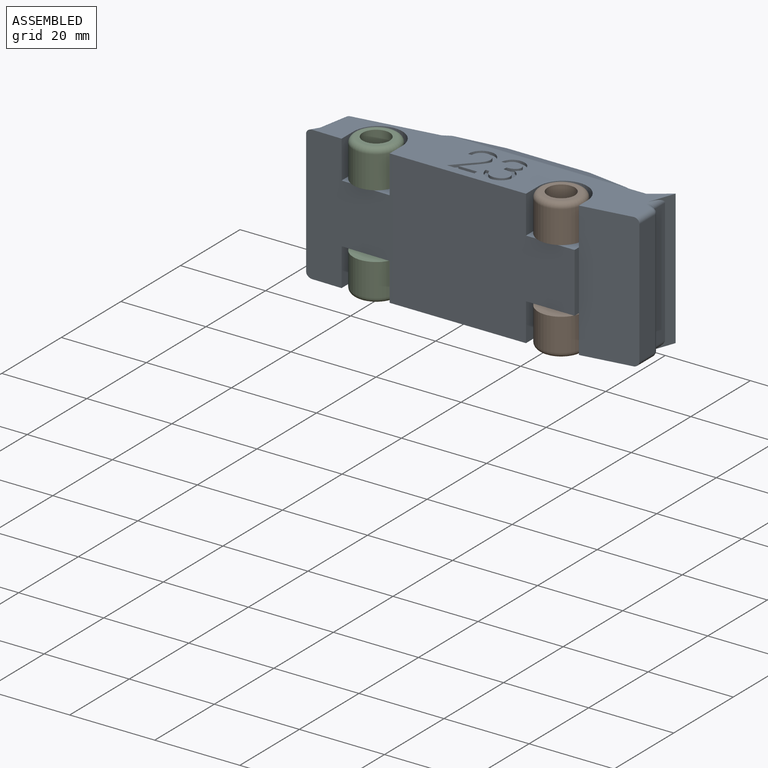
[diagram: assembled view]
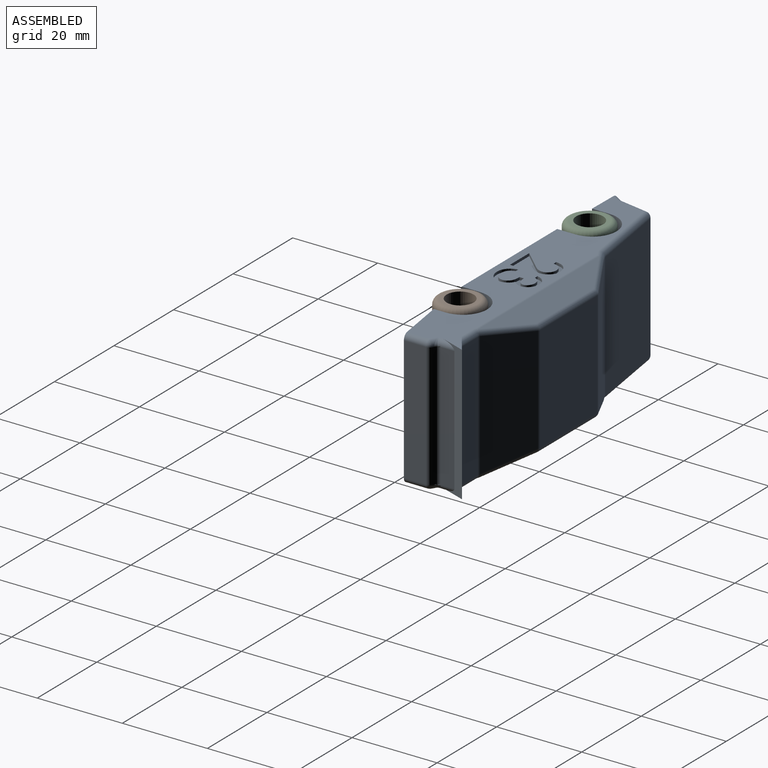
[diagram: assembled view, second angle]
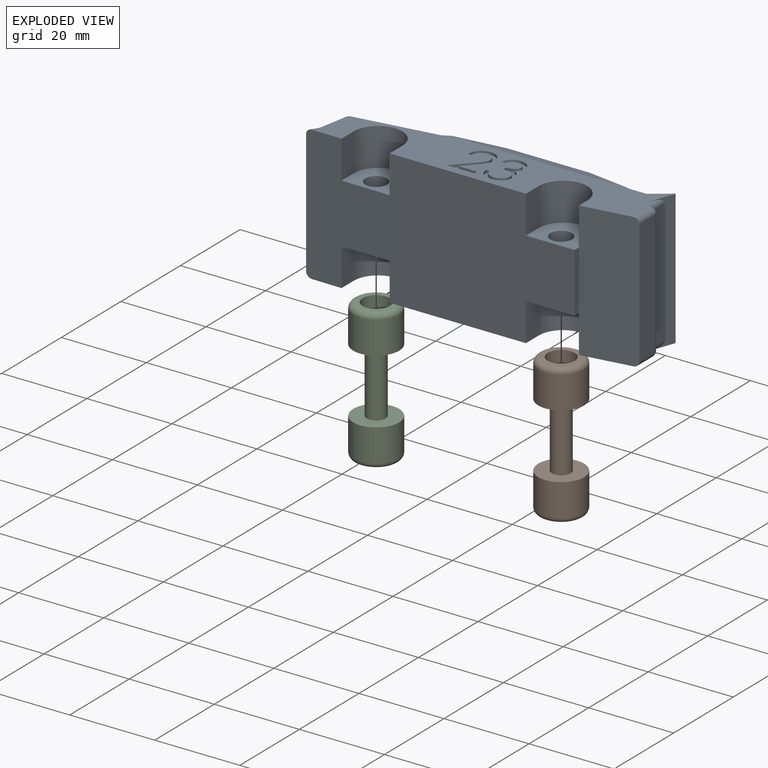
[diagram: exploded view]
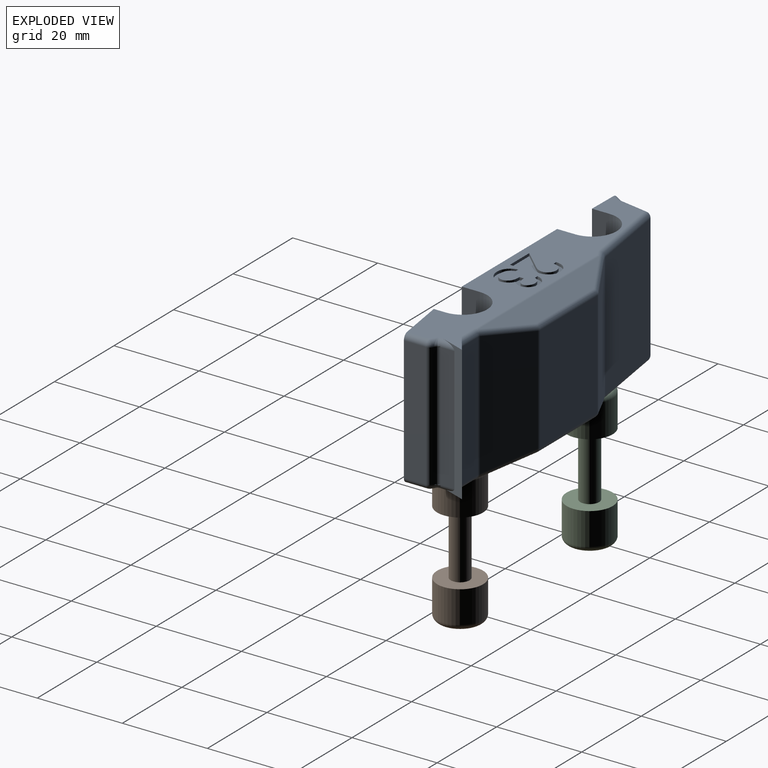
[diagram: exploded view, second angle]
ASSEMBLY  parts=3 mates=2
PART A: 150 faces, bbox 76.2x19.9x31.8 mm
  f0: plane 74.03x16.57mm, normal (0,0,-1), area 625.1mm2, adj f10,f11,f12,f16,f17,f29,f30,f31
  f1: plane 74.03x16.57mm, normal (0,0,1), area 625.1mm2, adj f10,f11,f12,f16,f17,f23,f24,f25
  f2: plane 11.43x9.98mm, normal (0,0,1), area 78.9mm2, adj f10,f23,f24,f25,f36
  f3: plane 11.43x9.98mm, normal (0,0,-1), area 78.9mm2, adj f10,f32,f33,f34,f36
  f4: plane 11.43x9.99mm, normal (0,0,1), area 79.9mm2, adj f11,f26,f27,f28,f35,f149
  f5: plane 11.43x9.99mm, normal (0,0,-1), area 79.9mm2, adj f11,f29,f30,f31,f35,f149
  f6: plane 29.21x5.47mm, normal (0,1,0), area 159.9mm2, adj f17,f128,f130,f135
  f7: plane 29.22x12.16mm, normal (0.39,0.92,0), area 357.7mm2, adj f119,f128,f131,f132,f134,f136
  f8: plane 24.97x19.28mm, normal (0,1,0), area 481.3mm2, adj f117,f119,f121,f122
  f9: plane 29.21x10.49mm, normal (-0.49,0.87,0), area 328.8mm2, adj f111,f115,f118,f122,f124,f126
  f10: plane 31.75x20.56mm, normal (-0.01,-1,0), area 448.9mm2, adj f0,f1,f2,f3,f11,f20,f23,f24
  f11: plane 42.78x31.75mm, normal (0,-1,0), area 1155.1mm2, adj f0,f1,f4,f5,f10,f26,f29,f149
  f12: plane 31.75x12.86mm, normal (0.15,-0.99,0), area 412.3mm2, adj f0,f1,f13,f27,f30,f139,f142,f149
  f13: plane 29.21x5.18mm, normal (1,0,0), area 151.3mm2, adj f12,f139,f142,f144
  f14: plane 29.21x0.33mm, normal (0.53,0.85,0), area 11.5mm2, adj f138,f141,f144,f147
  f15: plane 29.21x3.25mm, normal (1,0,0), area 95mm2, adj f16,f137,f140,f147
  f16: plane 31.75x5.91mm, normal (0.94,-0.34,0), area 81.7mm2, adj f0,f1,f15,f17,f137,f140
  f17: plane 31.75x5.09mm, normal (-0.58,0.81,0), area 130.2mm2, adj f0,f1,f6,f16,f130,f135
  f18: plane 29.21x19.1mm, normal (-0.15,0.99,0), area 564.5mm2, adj f99,f103,f104,f111
  f19: plane 29.21x6.68mm, normal (-0.98,0.18,0), area 198.4mm2, adj f102,f103,f107,f108
  f20: plane 29.21x1.98mm, normal (-0.85,0.53,0), area 67.8mm2, adj f10,f101,f107,f110
  f21: plane 40.58x5.13mm, normal (0,0.38,-0.92), area 166mm2, adj f113,f121,f124,f134
  f22: plane 40.58x5.13mm, normal (0,0.38,0.92), area 166mm2, adj f112,f117,f118,f131
  f23: plane 8.89x4.27mm, normal (-1,0,0), area 38mm2, adj f1,f2,f10,f25
  f24: plane 8.89x4.1mm, normal (1,0,0), area 36.5mm2, adj f1,f2,f10,f25
  f25: cylinder r=5.71mm len=11.43mm, axis (0,0,1), area 159.6mm2, adj f1,f2,f23,f24
  f26: plane 8.89x4.28mm, normal (1,0,0), area 38mm2, adj f1,f4,f11,f28
  f27: plane 8.89x2.85mm, normal (-1,0,0), area 25.3mm2, adj f1,f4,f12,f28
  f28: cylinder r=5.71mm len=11.43mm, axis (0,0,1), area 159.6mm2, adj f1,f4,f26,f27
  f29: plane 8.89x4.28mm, normal (1,0,0), area 38mm2, adj f0,f5,f11,f31
  f30: plane 8.89x2.85mm, normal (-1,0,0), area 25.3mm2, adj f0,f5,f12,f31
  f31: cylinder r=5.71mm len=11.43mm, axis (0,0,-1), area 159.6mm2, adj f0,f5,f29,f30
  f32: plane 8.89x4.1mm, normal (1,0,0), area 36.5mm2, adj f0,f3,f10,f34
  f33: plane 8.89x4.27mm, normal (-1,0,0), area 38mm2, adj f0,f3,f10,f34
  f34: cylinder r=5.71mm len=11.43mm, axis (0,0,-1), area 159.6mm2, adj f0,f3,f32,f33
  f35: cylinder r=2.54mm len=13.97mm, axis (0,0,1), area 223mm2, adj f4,f5
  f36: cylinder r=2.54mm len=13.97mm, axis (0,0,1), area 223mm2, adj f2,f3
  f37: extruded ~2.21x2.2mm, area 2.2mm2, adj f1,f38,f48,f49
  f38: plane 0.86x0.64mm, normal (0,1,0), area 0.5mm2, adj f1,f37,f39,f49
  f39: extruded ~3.18x3.11mm, area 3.1mm2, adj f1,f38,f40,f49
  f40: extruded ~2.88x2.83mm, area 2.9mm2, adj f1,f39,f41,f49
  f41: extruded ~3.42x1.93mm, area 2.6mm2, adj f1,f40,f42,f49
  f42: plane 2.54x2.38mm, normal (-0.73,0.68,0), area 2.2mm2, adj f1,f41,f43,f49
  f43: plane 4.43x0.64mm, normal (0,-1,0), area 2.8mm2, adj f1,f42,f44,f49
  f44: plane 0.98x0.64mm, normal (-1,0,0), area 0.6mm2, adj f1,f43,f45,f49
  f45: plane 6.47x0.64mm, normal (0,1,0), area 4.1mm2, adj f1,f44,f46,f49
  f46: plane 3.94x3.69mm, normal (0.73,-0.68,0), area 3.4mm2, adj f1,f45,f47,f49
  f47: extruded ~2.92x1.8mm, area 2.2mm2, adj f1,f46,f48,f49
  f48: extruded ~2.07x1.93mm, area 2mm2, adj f1,f37,f47,f49
  f49: plane 9.77x6.47mm, normal (0,0,1), area 19.5mm2, adj f37,f38,f39,f40,f41,f42,f43,f44
  f50: extruded ~1.99x1.47mm, area 1.7mm2, adj f1,f51,f66,f67
  f51: plane 0.86x0.64mm, normal (0,1,0), area 0.5mm2, adj f1,f50,f52,f67
  f52: extruded ~2.84x2.44mm, area 2.6mm2, adj f1,f51,f53,f67
  f53: extruded ~2.78x2.47mm, area 2.6mm2, adj f1,f52,f54,f67
  f54: extruded ~1.96x1.11mm, area 1.5mm2, adj f1,f53,f55,f67
  f55: extruded ~1.03x0.81mm, area 0.8mm2, adj f1,f54,f56,f67
  f56: extruded ~1.69x0.64mm, area 1.2mm2, adj f1,f55,f57,f67
  f57: extruded ~3.3x3.07mm, area 3.2mm2, adj f1,f56,f58,f67
  f58: extruded ~3.18x2.81mm, area 3mm2, adj f1,f57,f59,f67
  f59: plane 0.86x0.64mm, normal (0,-1,0), area 0.5mm2, adj f1,f58,f60,f67
  f60: extruded ~1.32x0.75mm, area 1mm2, adj f1,f59,f61,f67
  f61: extruded ~1.59x0.64mm, area 1.1mm2, adj f1,f60,f62,f67
  f62: extruded ~2.43x2.02mm, area 2.2mm2, adj f1,f61,f63,f67
  f63: extruded ~2.93x2.02mm, area 2.5mm2, adj f1,f62,f64,f67
  f64: plane 0.98x0.64mm, normal (1,0,0), area 0.6mm2, adj f1,f63,f65,f67
  f65: extruded ~2.44x1.56mm, area 2mm2, adj f1,f64,f66,f67
  f66: extruded ~1.92x1.49mm, area 1.7mm2, adj f1,f50,f65,f67
  f67: plane 10.01x6.47mm, normal (0,0,1), area 20.4mm2, adj f50,f51,f52,f53,f54,f55,f56,f57
  f68: extruded ~2.21x2.2mm, area 2.2mm2, adj f0,f69,f79,f80
  f69: plane 0.86x0.64mm, normal (0,1,0), area 0.5mm2, adj f0,f68,f70,f80
  f70: extruded ~3.18x3.11mm, area 3.1mm2, adj f0,f69,f71,f80
  f71: extruded ~2.88x2.83mm, area 2.9mm2, adj f0,f70,f72,f80
  f72: extruded ~3.42x1.93mm, area 2.6mm2, adj f0,f71,f73,f80
  f73: plane 2.54x2.38mm, normal (0.73,0.68,0), area 2.2mm2, adj f0,f72,f74,f80
  f74: plane 4.43x0.64mm, normal (0,-1,0), area 2.8mm2, adj f0,f73,f75,f80
  f75: plane 0.98x0.64mm, normal (1,0,0), area 0.6mm2, adj f0,f74,f76,f80
  f76: plane 6.47x0.64mm, normal (0,1,0), area 4.1mm2, adj f0,f75,f77,f80
  f77: plane 3.94x3.69mm, normal (-0.73,-0.68,0), area 3.4mm2, adj f0,f76,f78,f80
  f78: extruded ~2.92x1.8mm, area 2.2mm2, adj f0,f77,f79,f80
  f79: extruded ~2.07x1.93mm, area 2mm2, adj f0,f68,f78,f80
  f80: plane 9.77x6.47mm, normal (0,0,-1), area 19.5mm2, adj f68,f69,f70,f71,f72,f73,f74,f75
  f81: extruded ~1.99x1.47mm, area 1.7mm2, adj f0,f82,f97,f98
  f82: plane 0.86x0.64mm, normal (0,1,0), area 0.5mm2, adj f0,f81,f83,f98
  f83: extruded ~2.84x2.44mm, area 2.6mm2, adj f0,f82,f84,f98
  f84: extruded ~2.78x2.47mm, area 2.6mm2, adj f0,f83,f85,f98
  f85: extruded ~1.96x1.11mm, area 1.5mm2, adj f0,f84,f86,f98
  f86: extruded ~1.03x0.81mm, area 0.8mm2, adj f0,f85,f87,f98
  f87: extruded ~1.69x0.64mm, area 1.2mm2, adj f0,f86,f88,f98
  f88: extruded ~3.3x3.07mm, area 3.2mm2, adj f0,f87,f89,f98
  f89: extruded ~3.18x2.81mm, area 3mm2, adj f0,f88,f90,f98
  f90: plane 0.86x0.64mm, normal (0,-1,0), area 0.5mm2, adj f0,f89,f91,f98
  f91: extruded ~1.32x0.75mm, area 1mm2, adj f0,f90,f92,f98
  f92: extruded ~1.59x0.64mm, area 1.1mm2, adj f0,f91,f93,f98
  f93: extruded ~2.43x2.02mm, area 2.2mm2, adj f0,f92,f94,f98
  f94: extruded ~2.93x2.02mm, area 2.5mm2, adj f0,f93,f95,f98
  f95: plane 0.98x0.64mm, normal (-1,0,0), area 0.6mm2, adj f0,f94,f96,f98
  f96: extruded ~2.44x1.56mm, area 2mm2, adj f0,f95,f97,f98
  f97: extruded ~1.92x1.49mm, area 1.7mm2, adj f0,f81,f96,f98
  f98: plane 10.01x6.47mm, normal (0,0,-1), area 20.4mm2, adj f81,f82,f83,f84,f85,f86,f87,f88
  f99: cylinder r=1.27mm len=19.29mm, axis (-0.99,-0.15,0), area 38.5mm2, adj f0,f18,f100,f127
  f100: sphere r=1.27mm, area 2mm2, adj f99,f102,f103
  f101: cylinder r=1.27mm len=2.64mm, axis (-0.53,-0.85,0), area 4.1mm2, adj f0,f10,f20,f105
  f102: cylinder r=1.27mm len=6.91mm, axis (-0.18,-0.98,0), area 13.5mm2, adj f0,f19,f100,f105
  f103: cylinder r=1.27mm len=29.21mm, axis (0,0,-1), area 45.9mm2, adj f18,f19,f100,f106
  f104: cylinder r=1.27mm len=19.29mm, axis (0.99,0.15,0), area 38.5mm2, adj f1,f18,f106,f114
  f105: torus R=2.54mm, axis (0,0,1), area 1.3mm2, adj f0,f101,f102,f107
  f106: sphere r=1.27mm, area 2mm2, adj f103,f104,f108
  f107: cylinder r=1.27mm len=29.21mm, axis (0,0,1), area 13.9mm2, adj f19,f20,f105,f109
  f108: cylinder r=1.27mm len=6.91mm, axis (0.18,0.98,0), area 13.5mm2, adj f1,f19,f106,f109
  f109: torus R=2.54mm, axis (0,0,1), area 1.3mm2, adj f1,f107,f108,f110
  f110: cylinder r=1.27mm len=2.64mm, axis (0.53,0.85,0), area 4.1mm2, adj f1,f10,f20,f109
  f111: cylinder r=1.27mm len=29.21mm, axis (0,0,1), area 13.3mm2, adj f9,f18,f114,f127
  f112: cylinder r=1.27mm len=40.68mm, axis (-1,0,0), area 20.2mm2, adj f1,f22,f116,f131,f132
  f113: cylinder r=1.27mm len=40.68mm, axis (1,0,0), area 20.2mm2, adj f0,f21,f125,f134,f136
  f114: torus R=2.54mm, axis (0,0,1), area 1.2mm2, adj f1,f104,f111,f115
  f115: cylinder r=1.27mm len=1.95mm, axis (0.87,0.49,0), area 3mm2, adj f1,f9,f114,f116
  f116: sphere r=1.27mm, area 0.3mm2, adj f112,f115,f118
  f117: cylinder r=1.27mm len=19.28mm, axis (1,0,0), area 28.9mm2, adj f8,f22,f120,f129
  f118: cylinder r=1.27mm len=9.78mm, axis (0.86,0.48,-0.2), area 16.7mm2, adj f9,f22,f116,f120
  f119: cylinder r=1.27mm len=24.97mm, axis (0,0,-1), area 12.7mm2, adj f7,f8,f129,f133
  f120: sphere r=1.27mm, area 0.6mm2, adj f117,f118,f122
  f121: cylinder r=1.27mm len=19.28mm, axis (1,0,0), area 28.9mm2, adj f8,f21,f123,f133
  f122: cylinder r=1.27mm len=24.97mm, axis (0,0,-1), area 16.2mm2, adj f8,f9,f120,f123
  f123: sphere r=1.27mm, area 0.6mm2, adj f121,f122,f124
  f124: cylinder r=1.27mm len=9.78mm, axis (-0.86,-0.48,-0.2), area 16.7mm2, adj f9,f21,f123,f125
  f125: sphere r=1.27mm, area 0.3mm2, adj f113,f124,f126
  f126: cylinder r=1.27mm len=1.95mm, axis (0.87,0.49,0), area 3mm2, adj f0,f9,f125,f127
  f127: torus R=2.54mm, axis (0,0,1), area 1.2mm2, adj f0,f99,f111,f126
  f128: cylinder r=1.27mm len=29.21mm, axis (0,0,1), area 14.8mm2, adj f6,f7,f132,f136
  f129: sphere r=1.27mm, area 0.4mm2, adj f117,f119,f131
  f130: cylinder r=1.27mm len=5.47mm, axis (1,0,0), area 9.6mm2, adj f1,f6,f17,f132
  f131: cylinder r=1.27mm len=12.73mm, axis (0.91,-0.38,0.16), area 20.6mm2, adj f7,f22,f112,f129,f132
  f132: torus R=2.54mm, axis (0,0,1), area 1.5mm2, adj f1,f7,f112,f128,f130,f131
  f133: sphere r=1.27mm, area 0.4mm2, adj f119,f121,f134
  f134: cylinder r=1.27mm len=12.73mm, axis (-0.91,0.38,0.16), area 20.6mm2, adj f7,f21,f113,f133,f136
  f135: cylinder r=1.27mm len=5.47mm, axis (-1,0,0), area 9.6mm2, adj f0,f6,f17,f136
  f136: torus R=2.54mm, axis (0,0,1), area 1.5mm2, adj f0,f7,f113,f128,f134,f135
  f137: cylinder r=1.27mm len=4.67mm, axis (0,-1,0), area 4.9mm2, adj f1,f15,f16,f148
  f138: cylinder r=1.27mm len=2.21mm, axis (0.85,-0.53,0), area 1.8mm2, adj f1,f14,f145,f148
  f139: cylinder r=1.27mm len=5.38mm, axis (0,-1,0), area 10.5mm2, adj f1,f12,f13,f145
  f140: cylinder r=1.27mm len=4.67mm, axis (0,1,0), area 4.9mm2, adj f0,f15,f16,f146
  f141: cylinder r=1.27mm len=2.21mm, axis (-0.85,0.53,0), area 1.8mm2, adj f0,f14,f143,f146
  f142: cylinder r=1.27mm len=5.38mm, axis (0,1,0), area 10.5mm2, adj f0,f12,f13,f143
  f143: sphere r=1.27mm, area 1.6mm2, adj f141,f142,f144
  f144: cylinder r=1.27mm len=29.21mm, axis (0,0,-1), area 37.7mm2, adj f13,f14,f143,f145
  f145: sphere r=1.27mm, area 1.6mm2, adj f138,f139,f144
  f146: bspline ~1.87x1.44mm, area 1.7mm2, adj f140,f141,f147
  f147: cylinder r=1.27mm len=29.21mm, axis (0,0,1), area 37.7mm2, adj f14,f15,f146,f148
  f148: bspline ~1.87x1.44mm, area 1.7mm2, adj f137,f138,f147
  f149: plane 13.97x1.43mm, normal (1,0,0), area 20mm2, adj f4,f5,f11,f12
PART B: 13 faces, bbox 11.7x11.7x33 mm
  f0: plane 10.8x10.8mm, normal (0,0,-1), area 76mm2, adj f1,f3
  f1: cylinder r=5.4mm len=10.8mm, axis (0,0,-1), area 258.4mm2, adj f0,f8
  f2: plane 8.26x8.26mm, normal (0,0,1), area 21.9mm2, adj f8,f9
  f3: cylinder r=2.22mm len=15.24mm, axis (0,0,1), area 212.8mm2, adj f0,f4
  f4: plane 10.8x10.8mm, normal (0,0,1), area 76mm2, adj f3,f5
  f5: cylinder r=5.4mm len=10.8mm, axis (0,0,1), area 258.4mm2, adj f4,f7
  f6: plane 8.26x8.26mm, normal (0,0,-1), area 21.9mm2, adj f7,f11
  f7: torus R=4.13mm, axis (0,0,-1), area 61.9mm2, adj f5,f6
  f8: torus R=4.13mm, axis (0,0,1), area 61.9mm2, adj f1,f2
  f9: cylinder r=3.17mm len=6.35mm, axis (0,0,1), area 76mm2, adj f2,f10
  f10: plane 6.35x6.35mm, normal (0,0,1), area 31.7mm2, adj f9
  f11: cylinder r=3.17mm len=6.35mm, axis (0,0,-1), area 76mm2, adj f6,f12
  f12: plane 6.35x6.35mm, normal (0,0,-1), area 31.7mm2, adj f11
PART C: same geometry as B
PLACE A t=(-36.73,4.08,-6.12)mm
PLACE B t=(-13.86,7.72,17.37)mm
PLACE C t=(-57.36,7.72,17.37)mm
MATE revolute C.f1 <-> A.f36  axis (0,0,1) through (-57.36,7.72,9.75)mm
MATE revolute B.f1 <-> A.f35  axis (0,0,1) through (-13.86,7.72,9.75)mm
